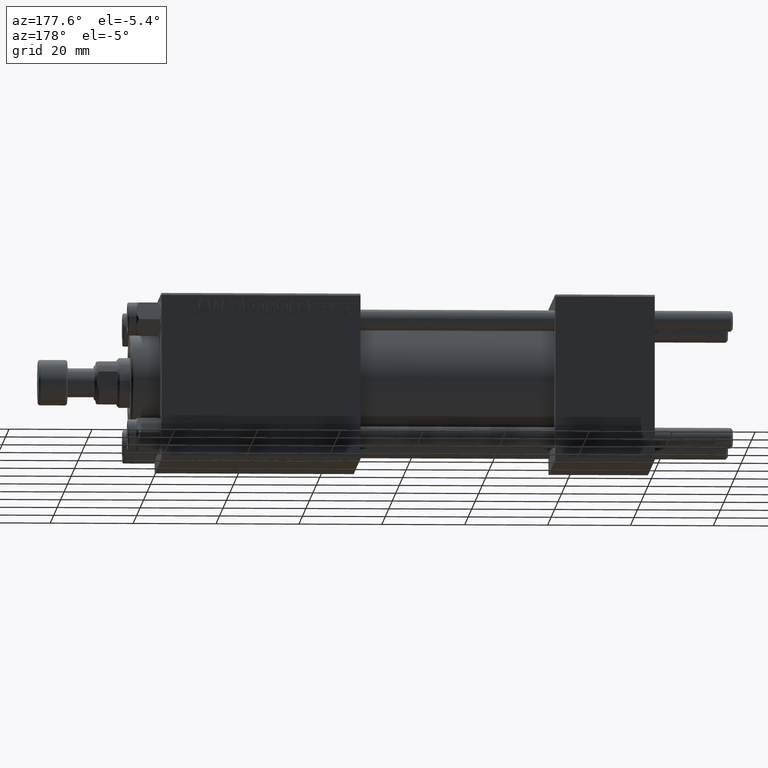
[diagram: clean part render]
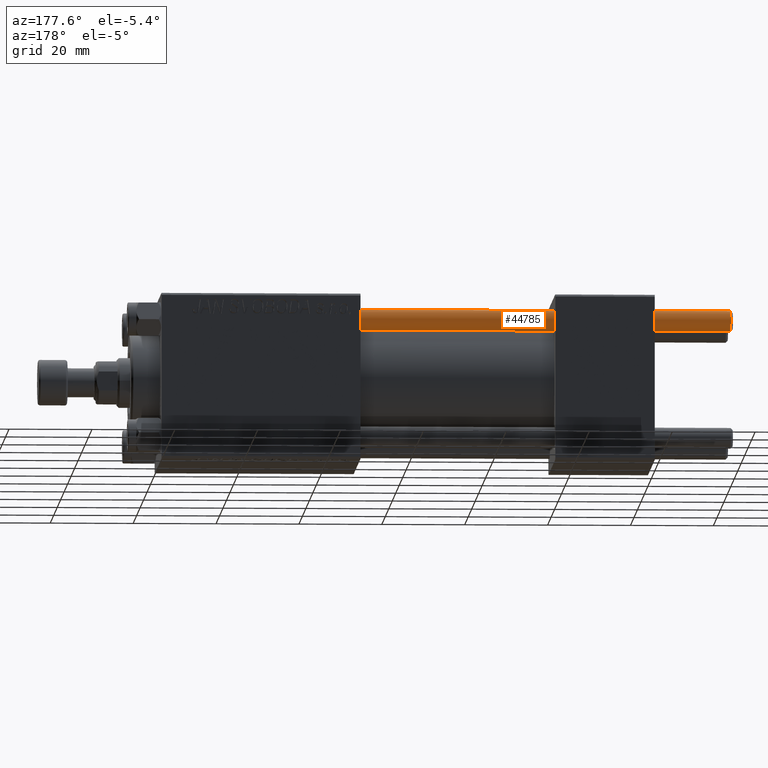
[diagram: same view with one face highlighted and labeled with its STEP entity id]
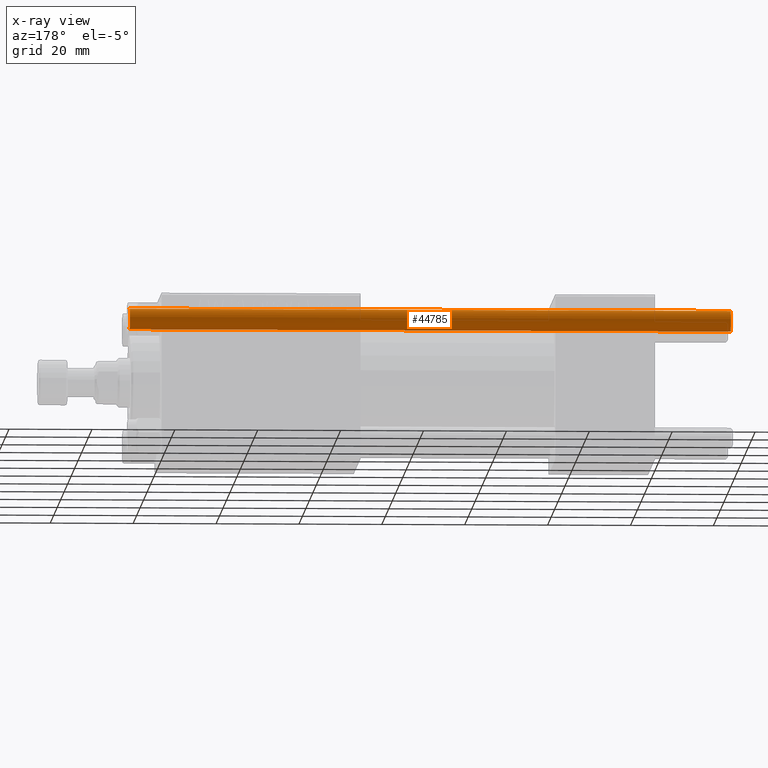
[diagram: x-ray of the same camera — body ghosted, the highlighted face saturated]
A machine part, auxiliary view. The second image highlights one B-rep face of the part: STEP entity #44785.
The next image is the same camera in x-ray: the body ghosted, the highlighted face saturated — about 0% of this face is hidden behind the body in this view.
In plain terms, the highlighted cylindrical surface (edge-blend (fillet) strip) has radius 2.5 mm, axis along (-1, -0, -0).
Its self-contained STEP definition (entity closure, byte-faithful):
#2262 = AXIS2_PLACEMENT_3D ( 'NONE', #11681, #8086, #46304 ) ;
#2896 = VERTEX_POINT ( 'NONE', #19126 ) ;
#4166 = EDGE_CURVE ( 'NONE', #2896, #7056, #24274, .T. ) ;
#4355 = CARTESIAN_POINT ( 'NONE',  ( 2.500000000000000000, 3.061616997868383141E-16, 146.0000000000000000 ) ) ;
#4654 = VERTEX_POINT ( 'NONE', #26838 ) ;
#7056 = VERTEX_POINT ( 'NONE', #39530 ) ;
#7436 = DIRECTION ( 'NONE',  ( -0.000000000000000000, -0.000000000000000000, -1.000000000000000000 ) ) ;
#8086 = DIRECTION ( 'NONE',  ( -0.000000000000000000, -0.000000000000000000, 1.000000000000000000 ) ) ;
#8870 = VECTOR ( 'NONE', #43456, 1000.000000000000000 ) ;
#9055 = CARTESIAN_POINT ( 'NONE',  ( -2.500000000000000000, 0.000000000000000000, 146.0000000000000000 ) ) ;
#9081 = CARTESIAN_POINT ( 'NONE',  ( 0.000000000000000000, 0.000000000000000000, 145.5000000000000284 ) ) ;
#9823 = ORIENTED_EDGE ( 'NONE', *, *, #10078, .F. ) ;
#10078 = EDGE_CURVE ( 'NONE', #4654, #7056, #40370, .T. ) ;
#11681 = CARTESIAN_POINT ( 'NONE',  ( 0.000000000000000000, 0.000000000000000000, 0.5000000000000559552 ) ) ;
#12736 = VERTEX_POINT ( 'NONE', #44816 ) ;
#14368 = FACE_OUTER_BOUND ( 'NONE', #38432, .T. ) ;
#14682 = ORIENTED_EDGE ( 'NONE', *, *, #46680, .T. ) ;
#19126 = CARTESIAN_POINT ( 'NONE',  ( 2.500000000000000000, 3.061616997868383141E-16, 0.5000000000000559552 ) ) ;
#19925 = LINE ( 'NONE', #4355, #45691 ) ;
#19999 = ORIENTED_EDGE ( 'NONE', *, *, #4166, .T. ) ;
#22475 = CIRCLE ( 'NONE', #27359, 2.500000000000000000 ) ;
#24274 = CIRCLE ( 'NONE', #2262, 2.500000000000000000 ) ;
#25074 = DIRECTION ( 'NONE',  ( -0.000000000000000000, -0.000000000000000000, -1.000000000000000000 ) ) ;
#26010 = EDGE_CURVE ( 'NONE', #4654, #12736, #22475, .T. ) ;
#26838 = CARTESIAN_POINT ( 'NONE',  ( -2.500000000000000000, 0.000000000000000000, 145.5000000000000284 ) ) ;
#27359 = AXIS2_PLACEMENT_3D ( 'NONE', #9081, #28928, #43974 ) ;
#28928 = DIRECTION ( 'NONE',  ( 0.000000000000000000, 0.000000000000000000, -1.000000000000000000 ) ) ;
#29127 = DIRECTION ( 'NONE',  ( -1.000000000000000000, 0.000000000000000000, 0.000000000000000000 ) ) ;
#33187 = ORIENTED_EDGE ( 'NONE', *, *, #26010, .T. ) ;
#38432 = EDGE_LOOP ( 'NONE', ( #33187, #14682, #19999, #9823 ) ) ;
#39530 = CARTESIAN_POINT ( 'NONE',  ( -2.500000000000000000, 0.000000000000000000, 0.5000000000000559552 ) ) ;
#40370 = LINE ( 'NONE', #9055, #8870 ) ;
#41604 = CARTESIAN_POINT ( 'NONE',  ( 0.000000000000000000, 0.000000000000000000, 146.0000000000000000 ) ) ;
#43456 = DIRECTION ( 'NONE',  ( -0.000000000000000000, -0.000000000000000000, -1.000000000000000000 ) ) ;
#43974 = DIRECTION ( 'NONE',  ( 1.000000000000000000, 0.000000000000000000, 0.000000000000000000 ) ) ;
#44785 = ADVANCED_FACE ( 'NONE', ( #14368 ), #48742, .T. ) ;
#44816 = CARTESIAN_POINT ( 'NONE',  ( 2.500000000000000000, 3.061616997868383141E-16, 145.5000000000000284 ) ) ;
#45691 = VECTOR ( 'NONE', #7436, 1000.000000000000000 ) ;
#46304 = DIRECTION ( 'NONE',  ( 1.000000000000000000, 0.000000000000000000, 0.000000000000000000 ) ) ;
#46680 = EDGE_CURVE ( 'NONE', #12736, #2896, #19925, .T. ) ;
#48742 = CYLINDRICAL_SURFACE ( 'NONE', #49694, 2.500000000000000000 ) ;
#49694 = AXIS2_PLACEMENT_3D ( 'NONE', #41604, #25074, #29127 ) ;